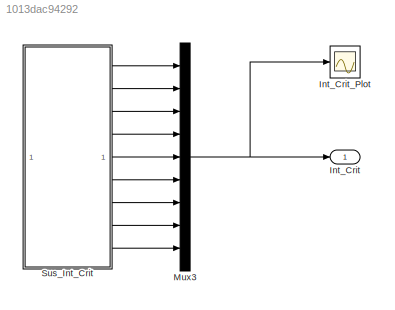
MODEL slx_1013dac94292
KIND model
CONFIG AbsTol = auto
CONFIG EnableMultiTasking = on
CONFIG FixedStep = auto
CONFIG MaxStep = auto
CONFIG MinStep = auto
CONFIG RelTol = 1e-3
CONFIG SampleTimeConstraint = Unconstrained
CONFIG SolverName = ode45
CONFIG StartTime = 0.0
CONFIG StopTime = 10.0
BLOCK [Outport] Int_Crit
BLOCK [Scope] Int_Crit_Plot
  DataLoggingDecimateData = on
  DataLoggingDecimation = 1
  DataLoggingLimitDataPoints = on
  DataLoggingSaveFormat = Structure With Time
  Floating = off
  GraphicalSettings = {"GraphicalSettings":{"LegacySettings":true,"Style":{"Style":{"MinimizeControls":"false","PlotType":"Auto"}}}}
  LayoutDimensionsString = [1 1]
  NumInputPorts = 1
  WasSavedAsWebScope = on
BLOCK [Mux] Mux3
  DisplayOption = bar
  Inputs = 9
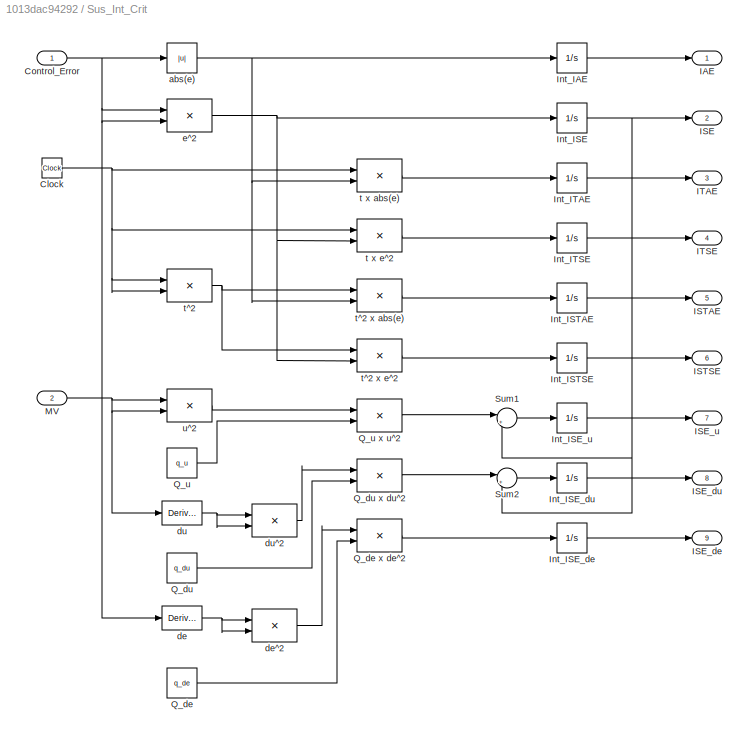
BLOCK [SubSystem] Sus_Int_Crit
BLOCK [Clock] Sus_Int_Crit/Clock
BLOCK [Inport] Sus_Int_Crit/Control_Error
BLOCK [Outport] Sus_Int_Crit/IAE
BLOCK [Outport] Sus_Int_Crit/ISE
  Port = 2
BLOCK [Outport] Sus_Int_Crit/ISE_de
  Port = 9
BLOCK [Outport] Sus_Int_Crit/ISE_du
  Port = 8
BLOCK [Outport] Sus_Int_Crit/ISE_u
  Port = 7
BLOCK [Outport] Sus_Int_Crit/ISTAE
  Port = 5
BLOCK [Outport] Sus_Int_Crit/ISTSE
  Port = 6
BLOCK [Outport] Sus_Int_Crit/ITAE
  Port = 3
BLOCK [Outport] Sus_Int_Crit/ITSE
  Port = 4
BLOCK [Integrator] Sus_Int_Crit/Int_IAE
BLOCK [Integrator] Sus_Int_Crit/Int_ISE
BLOCK [Integrator] Sus_Int_Crit/Int_ISE_de
BLOCK [Integrator] Sus_Int_Crit/Int_ISE_du
BLOCK [Integrator] Sus_Int_Crit/Int_ISE_u
BLOCK [Integrator] Sus_Int_Crit/Int_ISTAE
BLOCK [Integrator] Sus_Int_Crit/Int_ISTSE
BLOCK [Integrator] Sus_Int_Crit/Int_ITAE
BLOCK [Integrator] Sus_Int_Crit/Int_ITSE
BLOCK [Inport] Sus_Int_Crit/MV
  Port = 2
BLOCK [Constant] Sus_Int_Crit/Q_de
  Value = q_de
BLOCK [Product] Sus_Int_Crit/Q_de x de^2
  OutDataTypeStr = Inherit: Same as first input
  SaturateOnIntegerOverflow = on
BLOCK [Constant] Sus_Int_Crit/Q_du
  Value = q_du
BLOCK [Product] Sus_Int_Crit/Q_du x du^2
  OutDataTypeStr = Inherit: Same as first input
  SaturateOnIntegerOverflow = on
BLOCK [Constant] Sus_Int_Crit/Q_u
  Value = q_u
BLOCK [Product] Sus_Int_Crit/Q_u x u^2
  OutDataTypeStr = Inherit: Same as first input
  SaturateOnIntegerOverflow = on
BLOCK [Sum] Sus_Int_Crit/Sum1
  Inputs = |++
  SaturateOnIntegerOverflow = on
BLOCK [Sum] Sus_Int_Crit/Sum2
  Inputs = |++
  SaturateOnIntegerOverflow = on
BLOCK [Abs] Sus_Int_Crit/abs(e)
BLOCK [Derivative] Sus_Int_Crit/de
BLOCK [Product] Sus_Int_Crit/de^2
  OutDataTypeStr = Inherit: Same as first input
  SaturateOnIntegerOverflow = on
BLOCK [Derivative] Sus_Int_Crit/du
BLOCK [Product] Sus_Int_Crit/du^2
  OutDataTypeStr = Inherit: Same as first input
  SaturateOnIntegerOverflow = on
BLOCK [Product] Sus_Int_Crit/e^2
  OutDataTypeStr = Inherit: Same as first input
  SaturateOnIntegerOverflow = on
BLOCK [Product] Sus_Int_Crit/t x abs(e)
  OutDataTypeStr = Inherit: Same as first input
  SaturateOnIntegerOverflow = on
BLOCK [Product] Sus_Int_Crit/t x e^2
  OutDataTypeStr = Inherit: Same as first input
  SaturateOnIntegerOverflow = on
BLOCK [Product] Sus_Int_Crit/t^2
  OutDataTypeStr = Inherit: Same as first input
  SaturateOnIntegerOverflow = on
BLOCK [Product] Sus_Int_Crit/t^2 x abs(e)
  OutDataTypeStr = Inherit: Same as first input
  SaturateOnIntegerOverflow = on
BLOCK [Product] Sus_Int_Crit/t^2 x e^2
  OutDataTypeStr = Inherit: Same as first input
  SaturateOnIntegerOverflow = on
BLOCK [Product] Sus_Int_Crit/u^2
  OutDataTypeStr = Inherit: Same as first input
  SaturateOnIntegerOverflow = on
NET Mux3:1 -> Int_Crit:1, Int_Crit_Plot:1
NET Sus_Int_Crit/Clock:1 -> Sus_Int_Crit/t x abs(e):1, Sus_Int_Crit/t x e^2:1, Sus_Int_Crit/t^2:1, Sus_Int_Crit/t^2:2
NET Sus_Int_Crit/Control_Error:1 -> Sus_Int_Crit/abs(e):1, Sus_Int_Crit/de:1, Sus_Int_Crit/e^2:1, Sus_Int_Crit/e^2:2
LINE Sus_Int_Crit/Int_IAE:1 -> Sus_Int_Crit/IAE:1
NET Sus_Int_Crit/Int_ISE:1 -> Sus_Int_Crit/ISE:1, Sus_Int_Crit/Sum1:2, Sus_Int_Crit/Sum2:2
LINE Sus_Int_Crit/Int_ISE_de:1 -> Sus_Int_Crit/ISE_de:1
LINE Sus_Int_Crit/Int_ISE_du:1 -> Sus_Int_Crit/ISE_du:1
LINE Sus_Int_Crit/Int_ISE_u:1 -> Sus_Int_Crit/ISE_u:1
LINE Sus_Int_Crit/Int_ISTAE:1 -> Sus_Int_Crit/ISTAE:1
LINE Sus_Int_Crit/Int_ISTSE:1 -> Sus_Int_Crit/ISTSE:1
LINE Sus_Int_Crit/Int_ITAE:1 -> Sus_Int_Crit/ITAE:1
LINE Sus_Int_Crit/Int_ITSE:1 -> Sus_Int_Crit/ITSE:1
NET Sus_Int_Crit/MV:1 -> Sus_Int_Crit/du:1, Sus_Int_Crit/u^2:1, Sus_Int_Crit/u^2:2
LINE Sus_Int_Crit/Q_de x de^2:1 -> Sus_Int_Crit/Int_ISE_de:1
LINE Sus_Int_Crit/Q_de:1 -> Sus_Int_Crit/Q_de x de^2:2
LINE Sus_Int_Crit/Q_du x du^2:1 -> Sus_Int_Crit/Sum2:1
LINE Sus_Int_Crit/Q_du:1 -> Sus_Int_Crit/Q_du x du^2:2
LINE Sus_Int_Crit/Q_u x u^2:1 -> Sus_Int_Crit/Sum1:1
LINE Sus_Int_Crit/Q_u:1 -> Sus_Int_Crit/Q_u x u^2:2
LINE Sus_Int_Crit/Sum1:1 -> Sus_Int_Crit/Int_ISE_u:1
LINE Sus_Int_Crit/Sum2:1 -> Sus_Int_Crit/Int_ISE_du:1
NET Sus_Int_Crit/abs(e):1 -> Sus_Int_Crit/Int_IAE:1, Sus_Int_Crit/t x abs(e):2, Sus_Int_Crit/t^2 x abs(e):2
NET Sus_Int_Crit/de:1 -> Sus_Int_Crit/de^2:1, Sus_Int_Crit/de^2:2
LINE Sus_Int_Crit/de^2:1 -> Sus_Int_Crit/Q_de x de^2:1
NET Sus_Int_Crit/du:1 -> Sus_Int_Crit/du^2:1, Sus_Int_Crit/du^2:2
LINE Sus_Int_Crit/du^2:1 -> Sus_Int_Crit/Q_du x du^2:1
NET Sus_Int_Crit/e^2:1 -> Sus_Int_Crit/Int_ISE:1, Sus_Int_Crit/t x e^2:2, Sus_Int_Crit/t^2 x e^2:2
LINE Sus_Int_Crit/t x abs(e):1 -> Sus_Int_Crit/Int_ITAE:1
LINE Sus_Int_Crit/t x e^2:1 -> Sus_Int_Crit/Int_ITSE:1
LINE Sus_Int_Crit/t^2 x abs(e):1 -> Sus_Int_Crit/Int_ISTAE:1
LINE Sus_Int_Crit/t^2 x e^2:1 -> Sus_Int_Crit/Int_ISTSE:1
NET Sus_Int_Crit/t^2:1 -> Sus_Int_Crit/t^2 x abs(e):1, Sus_Int_Crit/t^2 x e^2:1
LINE Sus_Int_Crit/u^2:1 -> Sus_Int_Crit/Q_u x u^2:1
LINE Sus_Int_Crit:1 -> Mux3:1
LINE Sus_Int_Crit:2 -> Mux3:2
LINE Sus_Int_Crit:3 -> Mux3:3
LINE Sus_Int_Crit:4 -> Mux3:4
LINE Sus_Int_Crit:5 -> Mux3:5
LINE Sus_Int_Crit:6 -> Mux3:6
LINE Sus_Int_Crit:7 -> Mux3:7
LINE Sus_Int_Crit:8 -> Mux3:8
LINE Sus_Int_Crit:9 -> Mux3:9
note: NET lines group one-source signal fan-out (src -> all destinations, sorted); 1:1 wires keep LINE
